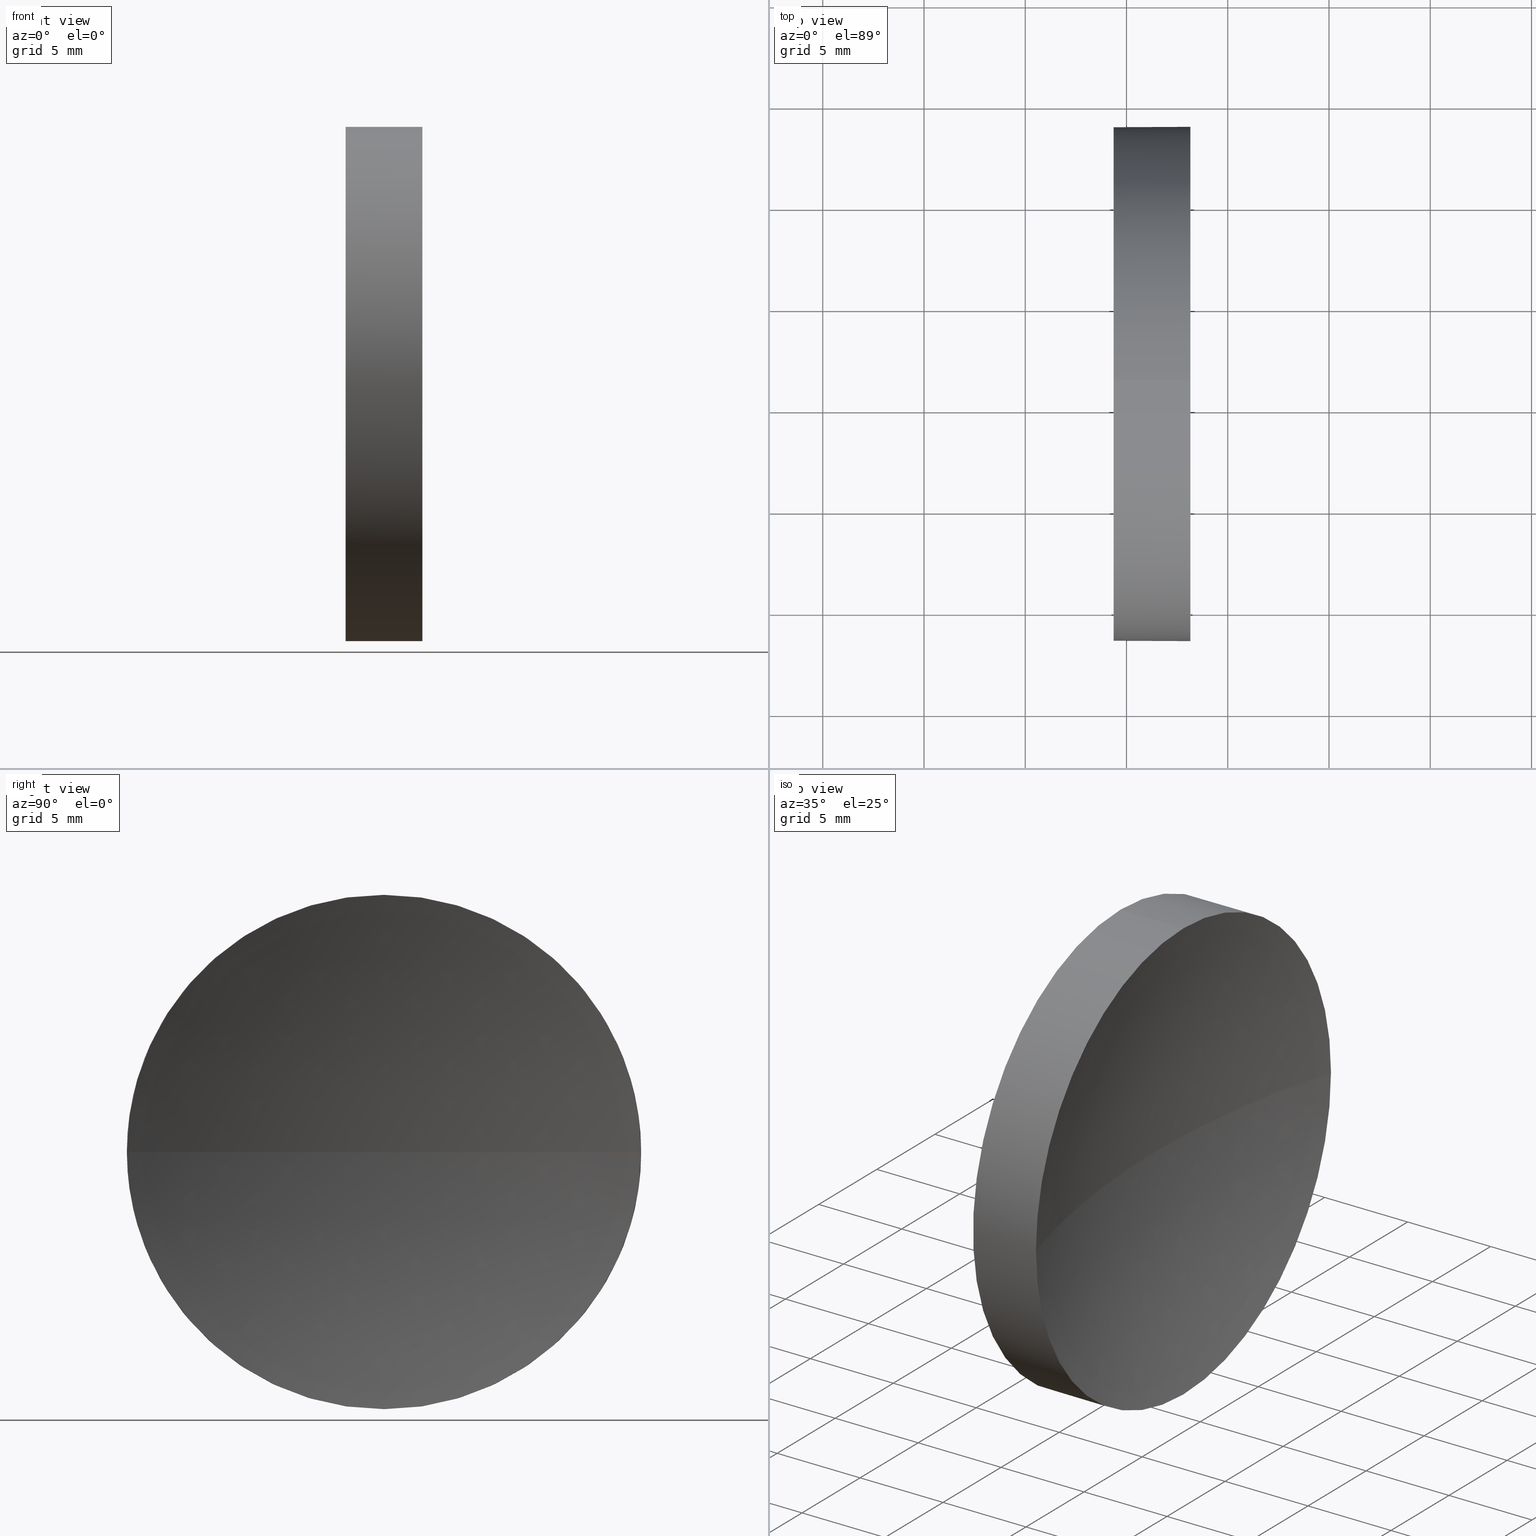
[diagram: canonical four-view strip — front | top / right | iso, engineering-drawing reading convention]
A machine part, canonical four-view strip (front | top / right | iso — engineering-drawing reading convention). The complete STEP part file that produces these views, byte-faithful:
ISO-10303-21;
HEADER;
FILE_DESCRIPTION (( 'STEP AP214' ),
    '1' );
FILE_NAME ('120267.STEP',
    '2019-06-25T03:16:56',
    ( '' ),
    ( '' ),
    'SwSTEP 2.0',
    'SolidWorks 2016',
    '' );
FILE_SCHEMA (( 'AUTOMOTIVE_DESIGN' ));
ENDSEC;

DATA;
#1 = PRODUCT_DEFINITION ( 'δ֪', '', #115, #44 ) ;
#2 = PRODUCT_DEFINITION_SHAPE ( 'NONE', 'NONE',  #1 ) ;
#3 = ORIENTED_EDGE ( 'NONE', *, *, #101, .T. ) ;
#4 =( NAMED_UNIT ( * ) PLANE_ANGLE_UNIT ( ) SI_UNIT ( $, .RADIAN. ) );
#5 =( GEOMETRIC_REPRESENTATION_CONTEXT ( 3 ) GLOBAL_UNCERTAINTY_ASSIGNED_CONTEXT ( ( #158 ) ) GLOBAL_UNIT_ASSIGNED_CONTEXT ( ( #174, #123, #119 ) ) REPRESENTATION_CONTEXT ( 'NONE', 'WORKASPACE' ) );
#6 = COLOUR_RGB ( '',1.000000000000000000, 1.000000000000000000, 1.000000000000000000 ) ;
#7 = MECHANICAL_DESIGN_GEOMETRIC_PRESENTATION_REPRESENTATION (  '', ( #55 ), #81 ) ;
#8 =( NAMED_UNIT ( * ) SI_UNIT ( $, .STERADIAN. ) SOLID_ANGLE_UNIT ( ) );
#9 = FILL_AREA_STYLE_COLOUR ( '', #48 ) ;
#10 = EDGE_CURVE ( 'NONE', #146, #176, #12, .T. ) ;
#11 = DIRECTION ( 'NONE',  ( 0.0000000000000000000, 0.0000000000000000000, -1.000000000000000000 ) ) ;
#12 = CIRCLE ( 'NONE', #46, 12.70000000000000300 ) ;
#13 = CARTESIAN_POINT ( 'NONE',  ( 123.1569153117396200, 71.19398908659370300, -12.69999999999998900 ) ) ;
#14 = DIRECTION ( 'NONE',  ( 1.000000000000000000, 0.0000000000000000000, 0.0000000000000000000 ) ) ;
#15 = AXIS2_PLACEMENT_3D ( 'NONE', #171, #175, #68 ) ;
#16 = EDGE_LOOP ( 'NONE', ( #85, #29, #153, #82 ) ) ;
#17 = CIRCLE ( 'NONE', #58, 12.70000000000000300 ) ;
#18 = ORIENTED_EDGE ( 'NONE', *, *, #167, .F. ) ;
#19 = FACE_OUTER_BOUND ( 'NONE', #132, .T. ) ;
#20 = ORIENTED_EDGE ( 'NONE', *, *, #170, .T. ) ;
#21 = DIRECTION ( 'NONE',  ( -1.000000000000000000, -0.0000000000000000000, -0.0000000000000000000 ) ) ;
#22 = AXIS2_PLACEMENT_3D ( 'NONE', #26, #61, #52 ) ;
#23 = DIRECTION ( 'NONE',  ( 0.0000000000000000000, 0.0000000000000000000, 1.000000000000000000 ) ) ;
#24 = DIRECTION ( 'NONE',  ( 0.0000000000000000000, 0.0000000000000000000, 1.000000000000000000 ) ) ;
#25 = VERTEX_POINT ( 'NONE', #106 ) ;
#26 = CARTESIAN_POINT ( 'NONE',  ( 167.2129307920347100, 71.19398908659368900, 0.0000000000000000000 ) ) ;
#27 = STYLED_ITEM ( 'NONE', ( #121 ), #88 ) ;
#28 = CARTESIAN_POINT ( 'NONE',  ( 167.2129307920347100, 71.19398908659368900, 0.0000000000000000000 ) ) ;
#29 = ORIENTED_EDGE ( 'NONE', *, *, #184, .F. ) ;
#30 = ORIENTED_EDGE ( 'NONE', *, *, #134, .T. ) ;
#31 = FACE_OUTER_BOUND ( 'NONE', #163, .T. ) ;
#32 = SURFACE_SIDE_STYLE ('',( #160 ) ) ;
#33 = AXIS2_PLACEMENT_3D ( 'NONE', #128, #37, #77 ) ;
#34 = CARTESIAN_POINT ( 'NONE',  ( 119.3629307920347200, 71.19398908659370300, 0.0000000000000000000 ) ) ;
#35 = CARTESIAN_POINT ( 'NONE',  ( 123.1569153117396200, 71.19398908659370300, 12.69999999999998900 ) ) ;
#36 = UNCERTAINTY_MEASURE_WITH_UNIT (LENGTH_MEASURE( 1.000000000000000100E-005 ), #145, 'distance_accuracy_value', 'NONE');
#37 = DIRECTION ( 'NONE',  ( -1.000000000000000000, -0.0000000000000000000, -0.0000000000000000000 ) ) ;
#38 = ORIENTED_EDGE ( 'NONE', *, *, #156, .T. ) ;
#39 = VECTOR ( 'NONE', #97, 1000.000000000000000 ) ;
#40 = DIRECTION ( 'NONE',  ( -1.000000000000000000, -0.0000000000000000000, -0.0000000000000000000 ) ) ;
#41 = ORIENTED_EDGE ( 'NONE', *, *, #59, .F. ) ;
#42 = ORIENTED_EDGE ( 'NONE', *, *, #134, .F. ) ;
#43 = MANIFOLD_SOLID_BREP ( '��ת1', #99 ) ;
#44 = PRODUCT_DEFINITION_CONTEXT ( 'detailed design', #87, 'design' ) ;
#45 = AXIS2_PLACEMENT_3D ( 'NONE', #130, #183, #24 ) ;
#46 = AXIS2_PLACEMENT_3D ( 'NONE', #127, #21, #178 ) ;
#47 = ORIENTED_EDGE ( 'NONE', *, *, #10, .T. ) ;
#48 = COLOUR_RGB ( '',1.000000000000000000, 1.000000000000000000, 1.000000000000000000 ) ;
#49 = SPHERICAL_SURFACE ( 'NONE', #90, 45.85000000000001600 ) ;
#50 =( LENGTH_UNIT ( ) NAMED_UNIT ( * ) SI_UNIT ( .MILLI., .METRE. ) );
#51 = CARTESIAN_POINT ( 'NONE',  ( 0.0000000000000000000, 0.0000000000000000000, 0.0000000000000000000 ) ) ;
#52 = DIRECTION ( 'NONE',  ( 0.0000000000000000000, 1.000000000000000000, 0.0000000000000000000 ) ) ;
#53 = MECHANICAL_DESIGN_GEOMETRIC_PRESENTATION_REPRESENTATION (  '', ( #27 ), #71 ) ;
#54 = VERTEX_POINT ( 'NONE', #35 ) ;
#55 = STYLED_ITEM ( 'NONE', ( #111 ), #43 ) ;
#56 = ADVANCED_FACE ( 'NONE', ( #19 ), #152, .F. ) ;
#57 = AXIS2_PLACEMENT_3D ( 'NONE', #168, #114, #179 ) ;
#58 = AXIS2_PLACEMENT_3D ( 'NONE', #34, #109, #23 ) ;
#59 = EDGE_CURVE ( 'NONE', #176, #146, #17, .T. ) ;
#60 = DIRECTION ( 'NONE',  ( 1.000000000000000000, 0.0000000000000000000, 0.0000000000000000000 ) ) ;
#61 = DIRECTION ( 'NONE',  ( 0.0000000000000000000, 0.0000000000000000000, -1.000000000000000000 ) ) ;
#62 = ORIENTED_EDGE ( 'NONE', *, *, #140, .F. ) ;
#63 = ORIENTED_EDGE ( 'NONE', *, *, #167, .T. ) ;
#64 = AXIS2_PLACEMENT_3D ( 'NONE', #92, #60, #11 ) ;
#65 = UNCERTAINTY_MEASURE_WITH_UNIT (LENGTH_MEASURE( 1.000000000000000100E-005 ), #50, 'distance_accuracy_value', 'NONE');
#66 = CIRCLE ( 'NONE', #15, 12.69999999999998900 ) ;
#67 = PRESENTATION_LAYER_ASSIGNMENT (  '', '', ( #55 ) ) ;
#68 = DIRECTION ( 'NONE',  ( 0.0000000000000000000, 0.0000000000000000000, 1.000000000000000000 ) ) ;
#69 = ORIENTED_EDGE ( 'NONE', *, *, #184, .T. ) ;
#70 = LINE ( 'NONE', #155, #39 ) ;
#71 =( GEOMETRIC_REPRESENTATION_CONTEXT ( 3 ) GLOBAL_UNCERTAINTY_ASSIGNED_CONTEXT ( ( #36 ) ) GLOBAL_UNIT_ASSIGNED_CONTEXT ( ( #145, #4, #135 ) ) REPRESENTATION_CONTEXT ( 'NONE', 'WORKASPACE' ) );
#72 = DIRECTION ( 'NONE',  ( 0.0000000000000000000, 1.000000000000000000, 0.0000000000000000000 ) ) ;
#73 = CARTESIAN_POINT ( 'NONE',  ( 123.1569153117396200, 83.89398908659367700, 0.0000000000000000000 ) ) ;
#74 = VERTEX_POINT ( 'NONE', #73 ) ;
#75 = CARTESIAN_POINT ( 'NONE',  ( 119.3629307920347200, 71.19398908659370300, -12.70000000000000100 ) ) ;
#76 = FILL_AREA_STYLE_COLOUR ( '', #6 ) ;
#77 = DIRECTION ( 'NONE',  ( 0.0000000000000000000, 0.0000000000000000000, 1.000000000000000000 ) ) ;
#78 = AXIS2_PLACEMENT_3D ( 'NONE', #51, #172, #105 ) ;
#79 = CYLINDRICAL_SURFACE ( 'NONE', #84, 12.69999999999999600 ) ;
#80 = ADVANCED_FACE ( 'NONE', ( #124 ), #79, .T. ) ;
#81 =( GEOMETRIC_REPRESENTATION_CONTEXT ( 3 ) GLOBAL_UNCERTAINTY_ASSIGNED_CONTEXT ( ( #65 ) ) GLOBAL_UNIT_ASSIGNED_CONTEXT ( ( #50, #107, #8 ) ) REPRESENTATION_CONTEXT ( 'NONE', 'WORKASPACE' ) );
#82 = ORIENTED_EDGE ( 'NONE', *, *, #140, .T. ) ;
#83 = FACE_OUTER_BOUND ( 'NONE', #16, .T. ) ;
#84 = AXIS2_PLACEMENT_3D ( 'NONE', #166, #137, #150 ) ;
#85 = ORIENTED_EDGE ( 'NONE', *, *, #170, .F. ) ;
#86 = APPLICATION_CONTEXT ( 'automotive_design' ) ;
#87 = APPLICATION_CONTEXT ( 'automotive_design' ) ;
#88 = ADVANCED_BREP_SHAPE_REPRESENTATION ( '120267', ( #43, #78 ), #5 ) ;
#89 = SURFACE_STYLE_USAGE ( .BOTH. , #32 ) ;
#90 = AXIS2_PLACEMENT_3D ( 'NONE', #149, #151, #72 ) ;
#91 = EDGE_LOOP ( 'NONE', ( #139, #69, #63, #38, #94 ) ) ;
#92 = CARTESIAN_POINT ( 'NONE',  ( 119.3629307920347200, 71.19398908659370300, 0.0000000000000000000 ) ) ;
#93 = PRODUCT ( '120267', '120267', '', ( #102 ) ) ;
#94 = ORIENTED_EDGE ( 'NONE', *, *, #10, .F. ) ;
#95 = CIRCLE ( 'NONE', #125, 12.69999999999998900 ) ;
#96 = CARTESIAN_POINT ( 'NONE',  ( 119.3629307920347200, 71.19398908659370300, 12.70000000000000300 ) ) ;
#97 = DIRECTION ( 'NONE',  ( -1.000000000000000000, -0.0000000000000000000, -0.0000000000000000000 ) ) ;
#98 = ADVANCED_FACE ( 'NONE', ( #83 ), #49, .F. ) ;
#99 = CLOSED_SHELL ( 'NONE', ( #157, #141, #98, #80, #56 ) ) ;
#100 = PRESENTATION_LAYER_ASSIGNMENT (  '', '', ( #27 ) ) ;
#101 = EDGE_CURVE ( 'NONE', #74, #159, #95, .T. ) ;
#102 = PRODUCT_CONTEXT ( 'NONE', #86, 'mechanical' ) ;
#103 = CIRCLE ( 'NONE', #162, 45.85000000000001600 ) ;
#104 = VERTEX_POINT ( 'NONE', #148 ) ;
#105 = DIRECTION ( 'NONE',  ( 1.000000000000000000, 0.0000000000000000000, 0.0000000000000000000 ) ) ;
#106 = CARTESIAN_POINT ( 'NONE',  ( 123.1569153117396200, 58.49398908659370000, -1.555301434917136900E-015 ) ) ;
#107 =( NAMED_UNIT ( * ) PLANE_ANGLE_UNIT ( ) SI_UNIT ( $, .RADIAN. ) );
#108 = FILL_AREA_STYLE ('',( #9 ) ) ;
#109 = DIRECTION ( 'NONE',  ( -1.000000000000000000, -0.0000000000000000000, -0.0000000000000000000 ) ) ;
#110 = DIRECTION ( 'NONE',  ( 0.0000000000000000000, 1.224646799147353200E-016, -1.000000000000000000 ) ) ;
#111 = PRESENTATION_STYLE_ASSIGNMENT (( #136 ) ) ;
#112 = CYLINDRICAL_SURFACE ( 'NONE', #57, 12.69999999999999600 ) ;
#113 = CARTESIAN_POINT ( 'NONE',  ( 167.2129307920347100, 71.19398908659368900, 0.0000000000000000000 ) ) ;
#114 = DIRECTION ( 'NONE',  ( -1.000000000000000000, -0.0000000000000000000, -0.0000000000000000000 ) ) ;
#115 = PRODUCT_DEFINITION_FORMATION_WITH_SPECIFIED_SOURCE ( '�κ�', '', #93, .NOT_KNOWN. ) ;
#116 = ORIENTED_EDGE ( 'NONE', *, *, #59, .T. ) ;
#117 = LINE ( 'NONE', #169, #186 ) ;
#118 = ORIENTED_EDGE ( 'NONE', *, *, #142, .T. ) ;
#119 =( NAMED_UNIT ( * ) SI_UNIT ( $, .STERADIAN. ) SOLID_ANGLE_UNIT ( ) );
#120 = ORIENTED_EDGE ( 'NONE', *, *, #156, .F. ) ;
#121 = PRESENTATION_STYLE_ASSIGNMENT (( #89 ) ) ;
#122 = FILL_AREA_STYLE ('',( #76 ) ) ;
#123 =( NAMED_UNIT ( * ) PLANE_ANGLE_UNIT ( ) SI_UNIT ( $, .RADIAN. ) );
#124 = FACE_OUTER_BOUND ( 'NONE', #91, .T. ) ;
#125 = AXIS2_PLACEMENT_3D ( 'NONE', #165, #177, #129 ) ;
#126 = EDGE_LOOP ( 'NONE', ( #18, #20, #62, #42 ) ) ;
#127 = CARTESIAN_POINT ( 'NONE',  ( 119.3629307920347200, 71.19398908659370300, 0.0000000000000000000 ) ) ;
#128 = CARTESIAN_POINT ( 'NONE',  ( 123.1569153117396200, 71.19398908659370300, 0.0000000000000000000 ) ) ;
#129 = DIRECTION ( 'NONE',  ( 0.0000000000000000000, 0.0000000000000000000, 1.000000000000000000 ) ) ;
#130 = CARTESIAN_POINT ( 'NONE',  ( 123.1569153117396200, 71.19398908659370300, 0.0000000000000000000 ) ) ;
#131 = DIRECTION ( 'NONE',  ( 0.0000000000000000000, 0.0000000000000000000, 1.000000000000000000 ) ) ;
#132 = EDGE_LOOP ( 'NONE', ( #116, #47 ) ) ;
#133 = PRODUCT_RELATED_PRODUCT_CATEGORY ( 'part', '', ( #93 ) ) ;
#134 = EDGE_CURVE ( 'NONE', #54, #74, #161, .T. ) ;
#135 =( NAMED_UNIT ( * ) SI_UNIT ( $, .STERADIAN. ) SOLID_ANGLE_UNIT ( ) );
#136 = SURFACE_STYLE_USAGE ( .BOTH. , #138 ) ;
#137 = DIRECTION ( 'NONE',  ( -1.000000000000000000, -0.0000000000000000000, -0.0000000000000000000 ) ) ;
#138 = SURFACE_SIDE_STYLE ('',( #185 ) ) ;
#139 = ORIENTED_EDGE ( 'NONE', *, *, #142, .F. ) ;
#140 = EDGE_CURVE ( 'NONE', #74, #104, #154, .T. ) ;
#141 = ADVANCED_FACE ( 'NONE', ( #143 ), #147, .F. ) ;
#142 = EDGE_CURVE ( 'NONE', #159, #146, #70, .T. ) ;
#143 = FACE_OUTER_BOUND ( 'NONE', #126, .T. ) ;
#144 = APPLICATION_PROTOCOL_DEFINITION ( 'draft international standard', 'automotive_design', 1998, #87 ) ;
#145 =( LENGTH_UNIT ( ) NAMED_UNIT ( * ) SI_UNIT ( .MILLI., .METRE. ) );
#146 = VERTEX_POINT ( 'NONE', #75 ) ;
#147 = SPHERICAL_SURFACE ( 'NONE', #22, 45.85000000000001600 ) ;
#148 = CARTESIAN_POINT ( 'NONE',  ( 121.3629307920347000, 71.19398908659368900, 0.0000000000000000000 ) ) ;
#149 = CARTESIAN_POINT ( 'NONE',  ( 167.2129307920347100, 71.19398908659368900, 0.0000000000000000000 ) ) ;
#150 = DIRECTION ( 'NONE',  ( 0.0000000000000000000, 0.0000000000000000000, 1.000000000000000000 ) ) ;
#151 = DIRECTION ( 'NONE',  ( 0.0000000000000000000, 0.0000000000000000000, -1.000000000000000000 ) ) ;
#152 = PLANE ( 'NONE',  #64 ) ;
#153 = ORIENTED_EDGE ( 'NONE', *, *, #101, .F. ) ;
#154 = CIRCLE ( 'NONE', #182, 45.85000000000003000 ) ;
#155 = CARTESIAN_POINT ( 'NONE',  ( 111.9552297575605700, 71.19398908659370300, -12.69999999999999600 ) ) ;
#156 = EDGE_CURVE ( 'NONE', #54, #176, #117, .T. ) ;
#157 = ADVANCED_FACE ( 'NONE', ( #31 ), #112, .T. ) ;
#158 = UNCERTAINTY_MEASURE_WITH_UNIT (LENGTH_MEASURE( 1.000000000000000100E-005 ), #174, 'distance_accuracy_value', 'NONE');
#159 = VERTEX_POINT ( 'NONE', #13 ) ;
#160 = SURFACE_STYLE_FILL_AREA ( #122 ) ;
#161 = CIRCLE ( 'NONE', #45, 12.69999999999998900 ) ;
#162 = AXIS2_PLACEMENT_3D ( 'NONE', #113, #110, #180 ) ;
#163 = EDGE_LOOP ( 'NONE', ( #3, #118, #41, #120, #30 ) ) ;
#164 = SHAPE_DEFINITION_REPRESENTATION ( #2, #88 ) ;
#165 = CARTESIAN_POINT ( 'NONE',  ( 123.1569153117396200, 71.19398908659370300, 0.0000000000000000000 ) ) ;
#166 = CARTESIAN_POINT ( 'NONE',  ( 111.9552297575605700, 71.19398908659370300, 0.0000000000000000000 ) ) ;
#167 = EDGE_CURVE ( 'NONE', #25, #54, #181, .T. ) ;
#168 = CARTESIAN_POINT ( 'NONE',  ( 111.9552297575605700, 71.19398908659370300, 0.0000000000000000000 ) ) ;
#169 = CARTESIAN_POINT ( 'NONE',  ( 111.9552297575605700, 71.19398908659370300, 12.69999999999999600 ) ) ;
#170 = EDGE_CURVE ( 'NONE', #25, #104, #103, .T. ) ;
#171 = CARTESIAN_POINT ( 'NONE',  ( 123.1569153117396200, 71.19398908659370300, 0.0000000000000000000 ) ) ;
#172 = DIRECTION ( 'NONE',  ( 0.0000000000000000000, 0.0000000000000000000, 1.000000000000000000 ) ) ;
#173 = APPLICATION_PROTOCOL_DEFINITION ( 'draft international standard', 'automotive_design', 1998, #86 ) ;
#174 =( LENGTH_UNIT ( ) NAMED_UNIT ( * ) SI_UNIT ( .MILLI., .METRE. ) );
#175 = DIRECTION ( 'NONE',  ( -1.000000000000000000, -0.0000000000000000000, -0.0000000000000000000 ) ) ;
#176 = VERTEX_POINT ( 'NONE', #96 ) ;
#177 = DIRECTION ( 'NONE',  ( -1.000000000000000000, -0.0000000000000000000, -0.0000000000000000000 ) ) ;
#178 = DIRECTION ( 'NONE',  ( 0.0000000000000000000, 0.0000000000000000000, 1.000000000000000000 ) ) ;
#179 = DIRECTION ( 'NONE',  ( 0.0000000000000000000, 0.0000000000000000000, 1.000000000000000000 ) ) ;
#180 = DIRECTION ( 'NONE',  ( 0.0000000000000000000, 1.000000000000000000, 1.224646799147353200E-016 ) ) ;
#181 = CIRCLE ( 'NONE', #33, 12.69999999999998900 ) ;
#182 = AXIS2_PLACEMENT_3D ( 'NONE', #28, #131, #14 ) ;
#183 = DIRECTION ( 'NONE',  ( -1.000000000000000000, -0.0000000000000000000, -0.0000000000000000000 ) ) ;
#184 = EDGE_CURVE ( 'NONE', #159, #25, #66, .T. ) ;
#185 = SURFACE_STYLE_FILL_AREA ( #108 ) ;
#186 = VECTOR ( 'NONE', #40, 1000.000000000000000 ) ;
ENDSEC;
END-ISO-10303-21;
